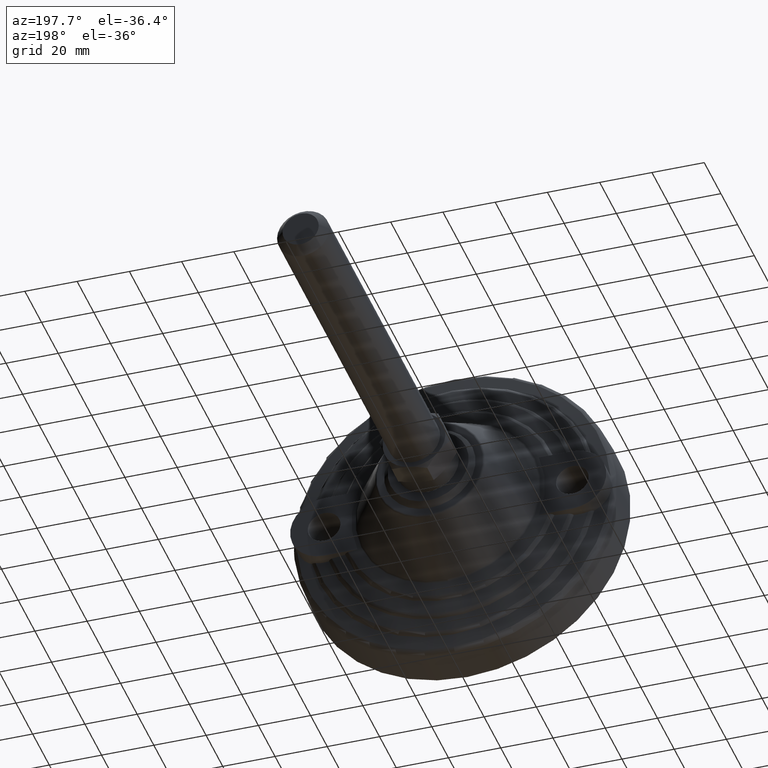
[diagram: clean part render]
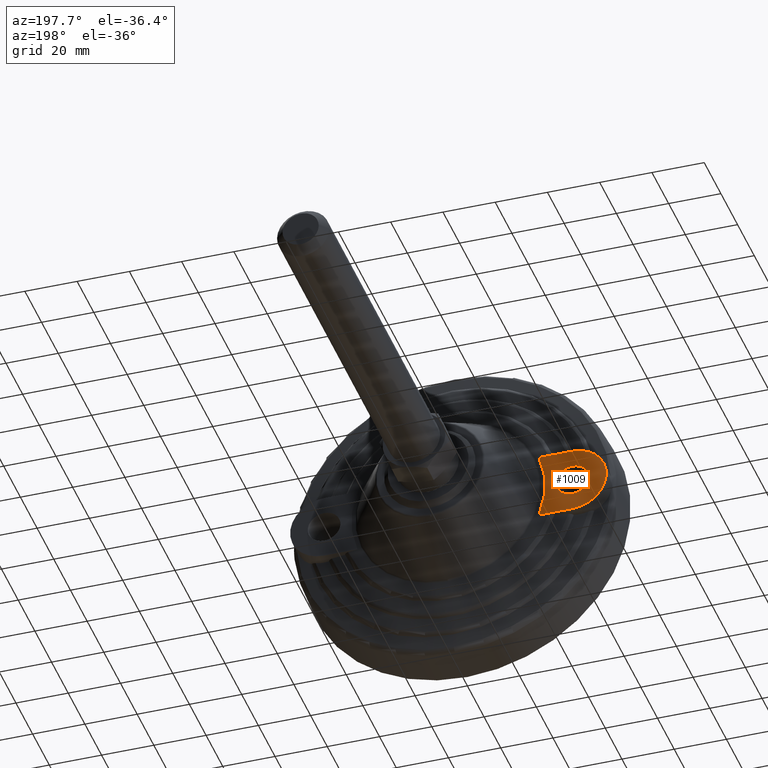
[diagram: same view with one face highlighted and labeled with its STEP entity id]
A machine part, auxiliary view. The second image highlights one B-rep face of the part: STEP entity #1009.
In plain terms, the highlighted planar face has unit normal (0, 1, 0).
Its self-contained STEP definition (entity closure, byte-faithful):
#123=LINE('',#1606,#146);
#124=LINE('',#1609,#147);
#146=VECTOR('',#1317,1000.);
#147=VECTOR('',#1320,1000.);
#171=FACE_BOUND('',#239,.T.);
#178=FACE_OUTER_BOUND('',#238,.T.);
#238=EDGE_LOOP('',(#631,#632,#633,#634));
#239=EDGE_LOOP('',(#635,#636));
#306=CIRCLE('',#1172,37.0648146316332);
#307=CIRCLE('',#1173,13.);
#308=CIRCLE('',#1174,6.25);
#309=CIRCLE('',#1175,6.25);
#377=VERTEX_POINT('',#1602);
#378=VERTEX_POINT('',#1603);
#379=VERTEX_POINT('',#1605);
#380=VERTEX_POINT('',#1607);
#381=VERTEX_POINT('',#1610);
#382=VERTEX_POINT('',#1611);
#479=EDGE_CURVE('',#377,#378,#306,.T.);
#480=EDGE_CURVE('',#377,#379,#123,.T.);
#481=EDGE_CURVE('',#379,#380,#307,.T.);
#482=EDGE_CURVE('',#380,#378,#124,.T.);
#483=EDGE_CURVE('',#381,#382,#308,.T.);
#484=EDGE_CURVE('',#382,#381,#309,.T.);
#631=ORIENTED_EDGE('',*,*,#479,.F.);
#632=ORIENTED_EDGE('',*,*,#480,.T.);
#633=ORIENTED_EDGE('',*,*,#481,.T.);
#634=ORIENTED_EDGE('',*,*,#482,.T.);
#635=ORIENTED_EDGE('',*,*,#483,.T.);
#636=ORIENTED_EDGE('',*,*,#484,.T.);
#931=PLANE('',#1171);
#1009=ADVANCED_FACE('',(#178,#171),#931,.T.);
#1171=AXIS2_PLACEMENT_3D('',#1601,#1313,#1314);
#1172=AXIS2_PLACEMENT_3D('',#1604,#1315,#1316);
#1173=AXIS2_PLACEMENT_3D('',#1608,#1318,#1319);
#1174=AXIS2_PLACEMENT_3D('',#1612,#1321,#1322);
#1175=AXIS2_PLACEMENT_3D('',#1613,#1323,#1324);
#1313=DIRECTION('center_axis',(0.,1.,0.));
#1314=DIRECTION('ref_axis',(0.,0.,1.));
#1315=DIRECTION('center_axis',(0.,1.,0.));
#1316=DIRECTION('ref_axis',(0.,0.,1.));
#1317=DIRECTION('',(-1.,0.,0.));
#1318=DIRECTION('center_axis',(0.,1.,0.));
#1319=DIRECTION('ref_axis',(1.,0.,0.));
#1320=DIRECTION('',(1.,0.,0.));
#1321=DIRECTION('center_axis',(0.,-1.,0.));
#1322=DIRECTION('ref_axis',(0.,0.,-1.));
#1323=DIRECTION('center_axis',(0.,-1.,0.));
#1324=DIRECTION('ref_axis',(0.,0.,-1.));
#1601=CARTESIAN_POINT('Origin',(-47.5,23.,0.));
#1602=CARTESIAN_POINT('',(-34.710236007226,23.,-13.));
#1603=CARTESIAN_POINT('',(-34.710236007226,23.,13.));
#1604=CARTESIAN_POINT('Origin',(0.,23.,0.));
#1605=CARTESIAN_POINT('',(-47.5,23.,-13.));
#1606=CARTESIAN_POINT('',(47.5,23.,-13.));
#1607=CARTESIAN_POINT('',(-47.5,23.,13.));
#1608=CARTESIAN_POINT('Origin',(-47.5,23.,0.));
#1609=CARTESIAN_POINT('',(-47.5,23.,13.));
#1610=CARTESIAN_POINT('',(-47.5,23.,-6.25));
#1611=CARTESIAN_POINT('',(-47.5,23.,6.25));
#1612=CARTESIAN_POINT('Origin',(-47.5,23.,0.));
#1613=CARTESIAN_POINT('Origin',(-47.5,23.,0.));